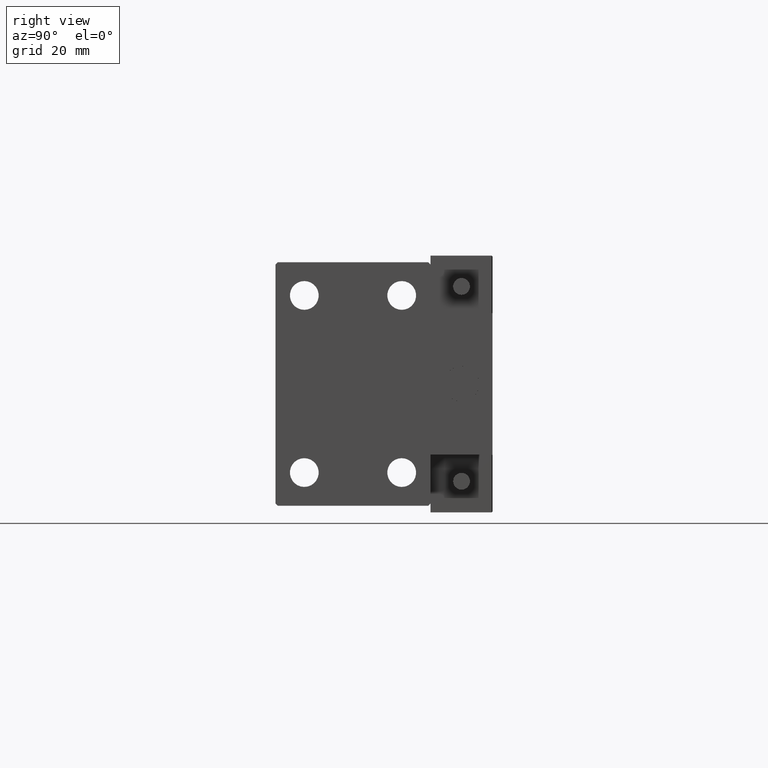
[diagram: clean part render]
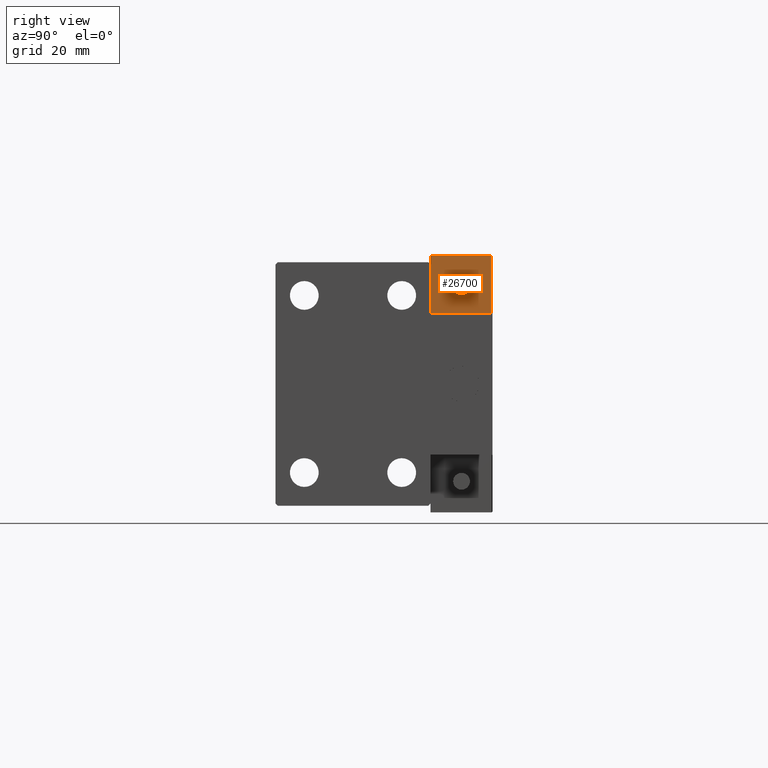
[diagram: same view with one face highlighted and labeled with its STEP entity id]
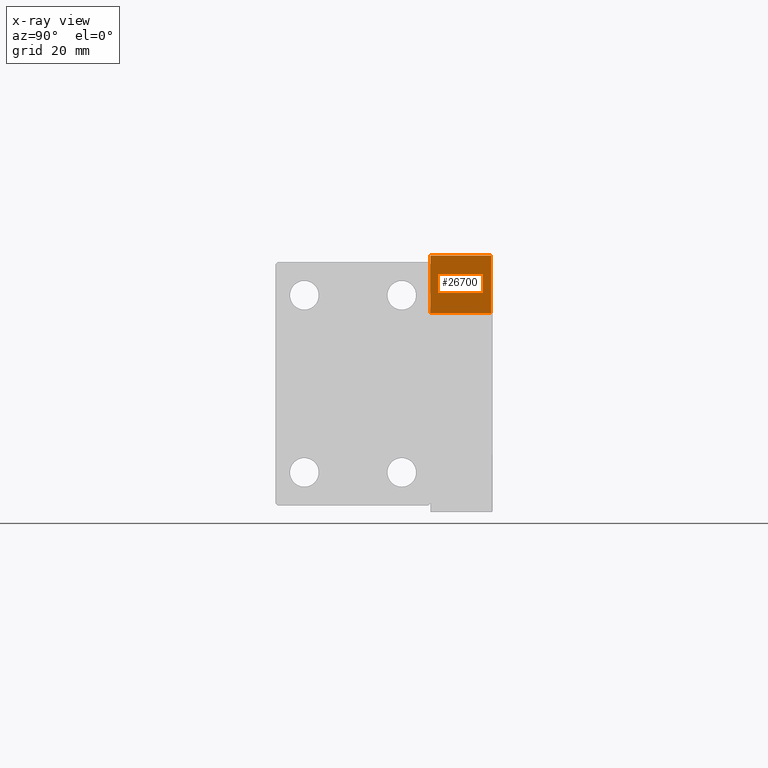
[diagram: x-ray of the same camera — body ghosted, the highlighted face saturated]
A machine part, right view. The second image highlights one B-rep face of the part: STEP entity #26700.
The next image is the same camera in x-ray: the body ghosted, the highlighted face saturated — about 6% of this face is hidden behind the body in this view.
In plain terms, the highlighted planar face has unit normal (-1, 0, 0).
Its self-contained STEP definition (entity closure, byte-faithful):
#3755 = DIRECTION ( 'NONE',  ( -8.006416042969869188E-16, -1.000000000000000000, 0.000000000000000000 ) ) ;
#4601 = DIRECTION ( 'NONE',  ( 8.006416042969869188E-16, 1.000000000000000000, 0.000000000000000000 ) ) ;
#5969 = VECTOR ( 'NONE', #16249, 1000.000000000000000 ) ;
#6360 = DIRECTION ( 'NONE',  ( -0.000000000000000000, -0.000000000000000000, -1.000000000000000000 ) ) ;
#7001 = VERTEX_POINT ( 'NONE', #31930 ) ;
#7358 = CARTESIAN_POINT ( 'NONE',  ( -26.99999999999994671, 7.000000000000005329, 14.00000000000000000 ) ) ;
#7678 = CARTESIAN_POINT ( 'NONE',  ( -26.99999999999993605, 20.00000000000002132, 14.00000000000000000 ) ) ;
#12107 = CARTESIAN_POINT ( 'NONE',  ( -26.99999999999993605, 20.00000000000002132, 13.70000000000000107 ) ) ;
#13183 = VECTOR ( 'NONE', #6360, 1000.000000000000000 ) ;
#14188 = LINE ( 'NONE', #45106, #42736 ) ;
#16218 = EDGE_CURVE ( 'NONE', #50003, #21913, #39315, .T. ) ;
#16249 = DIRECTION ( 'NONE',  ( -0.000000000000000000, -0.000000000000000000, -1.000000000000000000 ) ) ;
#17378 = DIRECTION ( 'NONE',  ( 8.006416042969869188E-16, 1.000000000000000000, -0.000000000000000000 ) ) ;
#17933 = VERTEX_POINT ( 'NONE', #27294 ) ;
#19218 = ORIENTED_EDGE ( 'NONE', *, *, #16218, .T. ) ;
#20046 = CARTESIAN_POINT ( 'NONE',  ( -26.99999999999993605, 20.00000000000002132, 14.00000000000000000 ) ) ;
#20677 = CARTESIAN_POINT ( 'NONE',  ( -26.99999999999993605, 20.00000000000002132, 13.70000000000000107 ) ) ;
#21913 = VERTEX_POINT ( 'NONE', #48212 ) ;
#22944 = ORIENTED_EDGE ( 'NONE', *, *, #48754, .F. ) ;
#26700 = ADVANCED_FACE ( 'NONE', ( #38330 ), #35029, .F. ) ;
#27294 = CARTESIAN_POINT ( 'NONE',  ( -26.99999999999994671, 7.000000000000005329, 0.000000000000000000 ) ) ;
#27924 = ORIENTED_EDGE ( 'NONE', *, *, #31812, .T. ) ;
#31238 = DIRECTION ( 'NONE',  ( 1.000000000000000000, -8.006416042969869188E-16, 0.000000000000000000 ) ) ;
#31812 = EDGE_CURVE ( 'NONE', #7001, #50003, #32837, .T. ) ;
#31930 = CARTESIAN_POINT ( 'NONE',  ( -26.99999999999994671, 7.000000000000005329, 13.70000000000000107 ) ) ;
#32837 = LINE ( 'NONE', #20677, #34393 ) ;
#34393 = VECTOR ( 'NONE', #17378, 1000.000000000000000 ) ;
#35029 = PLANE ( 'NONE',  #39891 ) ;
#35998 = EDGE_LOOP ( 'NONE', ( #22944, #27924, #19218, #50069 ) ) ;
#38330 = FACE_OUTER_BOUND ( 'NONE', #35998, .T. ) ;
#39315 = LINE ( 'NONE', #20046, #5969 ) ;
#39624 = EDGE_CURVE ( 'NONE', #21913, #17933, #14188, .T. ) ;
#39891 = AXIS2_PLACEMENT_3D ( 'NONE', #7678, #31238, #4601 ) ;
#42736 = VECTOR ( 'NONE', #3755, 1000.000000000000000 ) ;
#45106 = CARTESIAN_POINT ( 'NONE',  ( -26.99999999999993605, 20.00000000000002132, 0.000000000000000000 ) ) ;
#48212 = CARTESIAN_POINT ( 'NONE',  ( -26.99999999999993605, 20.00000000000002132, 0.000000000000000000 ) ) ;
#48693 = LINE ( 'NONE', #7358, #13183 ) ;
#48754 = EDGE_CURVE ( 'NONE', #7001, #17933, #48693, .T. ) ;
#50003 = VERTEX_POINT ( 'NONE', #12107 ) ;
#50069 = ORIENTED_EDGE ( 'NONE', *, *, #39624, .T. ) ;